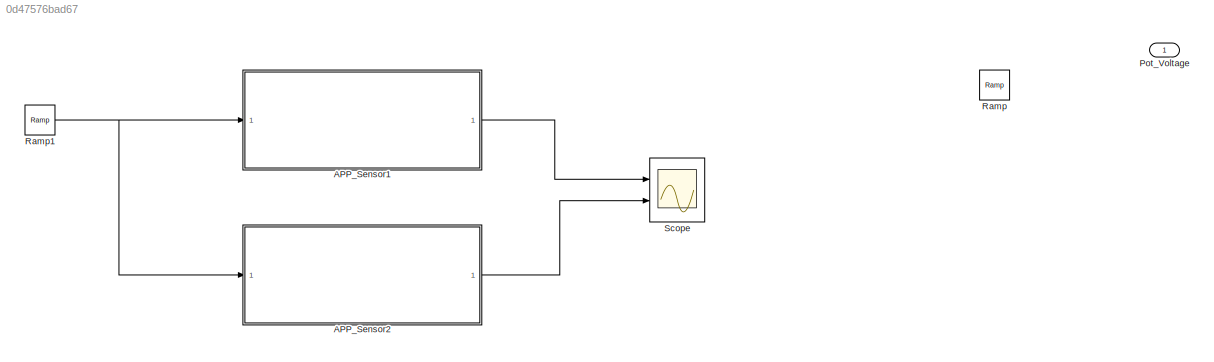
MODEL slx_0d47576bad67
KIND model
CONFIG AbsTol = auto
CONFIG EnableMultiTasking = off
CONFIG FixedStep = auto
CONFIG MaxStep = auto
CONFIG MinStep = auto
CONFIG RelTol = 1e-3
CONFIG SampleTimeConstraint = Unconstrained
CONFIG SolverName = VariableStepAuto
CONFIG StartTime = 0.0
CONFIG StopTime = 10.0
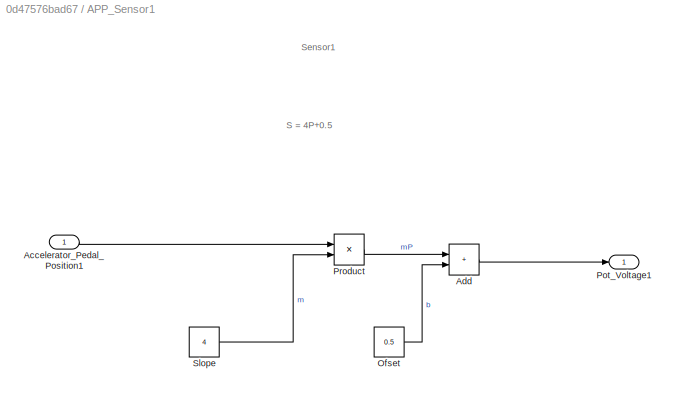
BLOCK [SubSystem] APP_Sensor1
  Ports = [1, 1]
  RequestExecContextInheritance = off
BLOCK [Inport] APP_Sensor1/Accelerator_Pedal_Position1
BLOCK [Sum] APP_Sensor1/Add
  IconShape = rectangular
  Ports = [2, 1]
BLOCK [Constant] APP_Sensor1/Ofset
  Value = 0.5
BLOCK [Outport] APP_Sensor1/Pot_Voltage1
BLOCK [Product] APP_Sensor1/Product
  Ports = [2, 1]
BLOCK [Constant] APP_Sensor1/Slope
  Value = 4
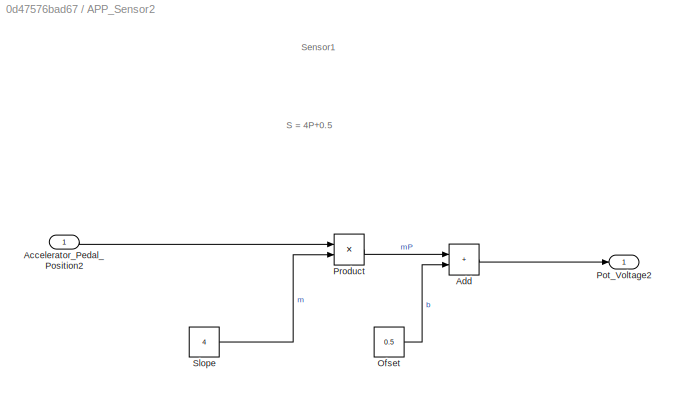
BLOCK [SubSystem] APP_Sensor2
  Ports = [1, 1]
  RequestExecContextInheritance = off
BLOCK [Inport] APP_Sensor2/Accelerator_Pedal_Position2
BLOCK [Sum] APP_Sensor2/Add
  IconShape = rectangular
  Ports = [2, 1]
BLOCK [Constant] APP_Sensor2/Ofset
  Value = 0.5
BLOCK [Outport] APP_Sensor2/Pot_Voltage2
BLOCK [Product] APP_Sensor2/Product
  Ports = [2, 1]
BLOCK [Constant] APP_Sensor2/Slope
  Value = 4
BLOCK [Outport] Pot_Voltage
BLOCK [Reference] Ramp  REF=simulink/Sources/Ramp
  Ports = [0, 1]
  SourceBlock = simulink/Sources/Ramp
  SourceProductBaseCode = SL
  SourceType = Ramp
BLOCK [Reference] Ramp1  REF=simulink/Sources/Ramp
  Ports = [0, 1]
  SourceBlock = simulink/Sources/Ramp
  SourceProductBaseCode = SL
  SourceType = Ramp
BLOCK [Scope] Scope
  Floating = off
  NumInputPorts = 2
  Ports = [2]
  ScopeSpecificationString = Simulink.scopes.TimeScopeBlockCfg('CurrentConfiguration', extmgr.ConfigurationSet(extmgr.Configuration('Core','General UI',true),extmgr.Configuration('Core','Source UI',true),extmgr.Configuration('Sources','WiredSimulink',true),extmgr.Configuration('Visuals','Time Domain',true,'SerializedDisplays',{struct('MinYLimReal','-17.5','MaxYLimReal','182.5','YLabelReal','','MinYLimMag','0.00000','MaxYLimMa...<+1360ch>
ANNOTATION APP_Sensor1: S = 4P+0.5
ANNOTATION APP_Sensor1: Sensor1
ANNOTATION APP_Sensor2: S = 4P+0.5
ANNOTATION APP_Sensor2: Sensor1
LINE APP_Sensor1/Accelerator_Pedal_Position1:1 -> APP_Sensor1/Product:1
LINE APP_Sensor1/Add:1 -> APP_Sensor1/Pot_Voltage1:1
LINE APP_Sensor1/Ofset:1 -> APP_Sensor1/Add:2
LINE APP_Sensor1/Product:1 -> APP_Sensor1/Add:1
LINE APP_Sensor1/Slope:1 -> APP_Sensor1/Product:2
LINE APP_Sensor1:1 -> Scope:1
LINE APP_Sensor2/Accelerator_Pedal_Position2:1 -> APP_Sensor2/Product:1
LINE APP_Sensor2/Add:1 -> APP_Sensor2/Pot_Voltage2:1
LINE APP_Sensor2/Ofset:1 -> APP_Sensor2/Add:2
LINE APP_Sensor2/Product:1 -> APP_Sensor2/Add:1
LINE APP_Sensor2/Slope:1 -> APP_Sensor2/Product:2
LINE APP_Sensor2:1 -> Scope:2
NET Ramp1:1 -> APP_Sensor1:1, APP_Sensor2:1
note: NET lines group one-source signal fan-out (src -> all destinations, sorted); 1:1 wires keep LINE
